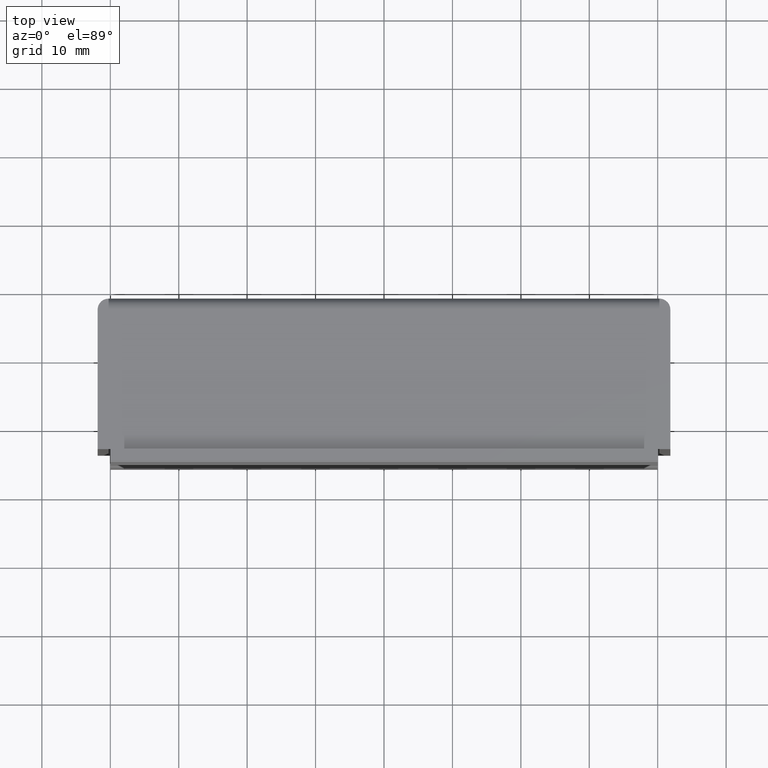
[diagram: clean part render]
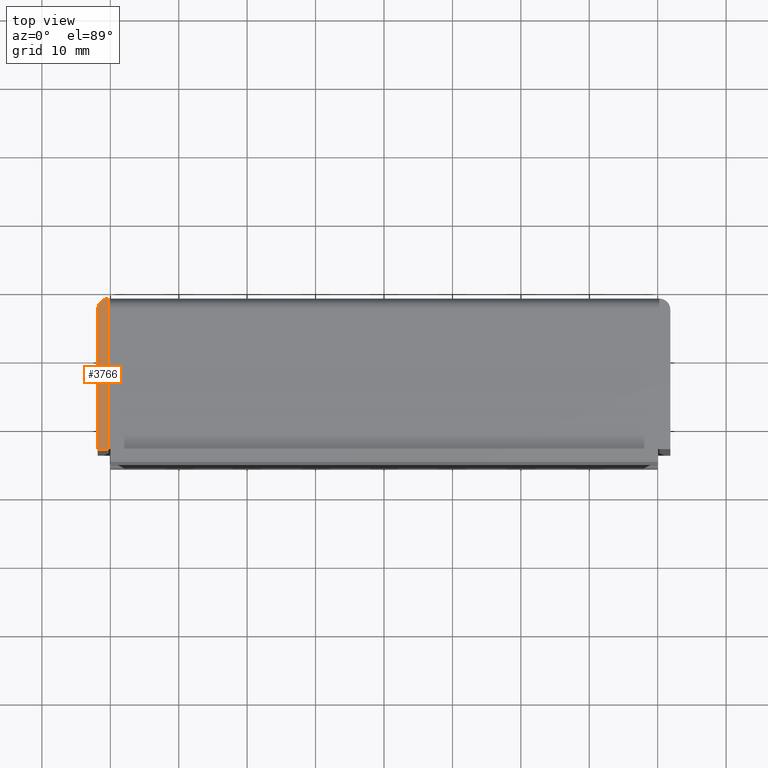
[diagram: same view with one face highlighted and labeled with its STEP entity id]
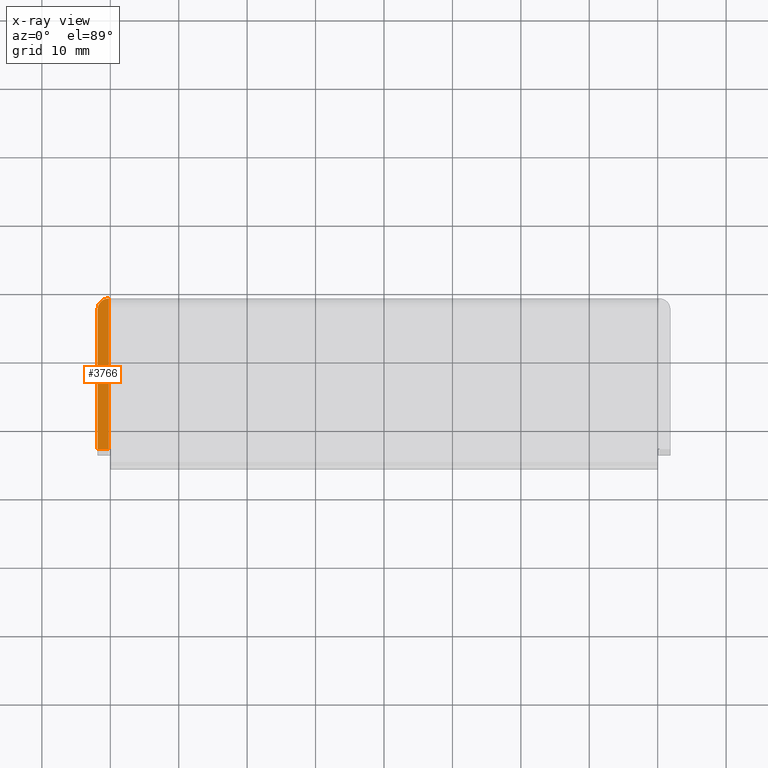
[diagram: x-ray of the same camera — body ghosted, the highlighted face saturated]
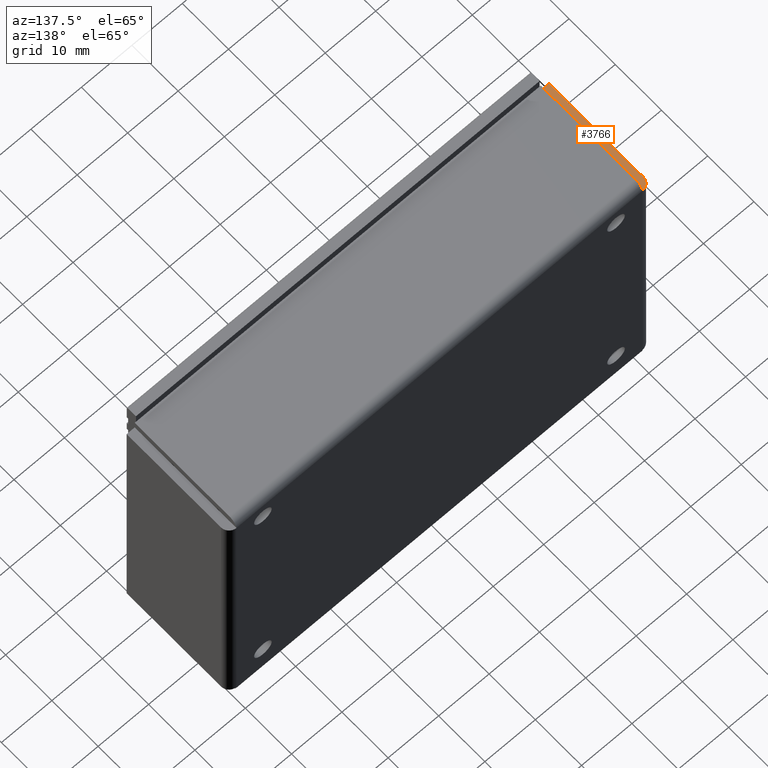
[diagram: same view with one face highlighted and labeled with its STEP entity id]
A machine part, top view. The second image highlights one B-rep face of the part: STEP entity #3766.
The next image is the same camera in x-ray: the body ghosted, the highlighted face saturated — about 0% of this face is hidden behind the body in this view.
A second angle (auxiliary view) of the same face is appended — the face is thin or edge-on in the first view.
In plain terms, the highlighted face is a freeform B-spline surface patch.
Its self-contained STEP definition (entity closure, byte-faithful):
#3618=CARTESIAN_POINT('',(-40.250000000000000,58.368048000000002,58.500000000000000));
#3619=VERTEX_POINT('',#3618);
#3620=CARTESIAN_POINT('',(-41.850000000000001,56.768048000000000,58.500000000000000));
#3621=VERTEX_POINT('',#3620);
#3622=CARTESIAN_POINT('',(-40.250000000000000,58.368048000000002,58.500000000000000));
#3623=CARTESIAN_POINT('',(-41.850000000000009,58.368047999999995,58.499999999999993));
#3624=CARTESIAN_POINT('',(-41.850000000000001,56.768048000000000,58.500000000000000));
#3632=(BOUNDED_CURVE()B_SPLINE_CURVE(2,(#3622,#3623,#3624),.UNSPECIFIED.,.F.,.U.)CURVE()GEOMETRIC_REPRESENTATION_ITEM()QUASI_UNIFORM_CURVE()RATIONAL_B_SPLINE_CURVE((1.0,0.707106781186548,1.0))REPRESENTATION_ITEM(''));
#3633=EDGE_CURVE('',#3619,#3621,#3632,.T.);
#3670=CARTESIAN_POINT('',(-40.250000000000000,36.368047999999952,58.500000000000000));
#3671=VERTEX_POINT('',#3670);
#3672=CARTESIAN_POINT('',(-41.850000000000001,36.368047999999952,58.500000000000000));
#3673=VERTEX_POINT('',#3672);
#3674=CARTESIAN_POINT('',(-40.250000000000000,36.368047999999952,58.500000000000000));
#3675=CARTESIAN_POINT('',(-41.850000000000001,36.368047999999952,58.500000000000000));
#3676=QUASI_UNIFORM_CURVE('',1,(#3674,#3675),.UNSPECIFIED.,.F.,.U.);
#3677=EDGE_CURVE('',#3671,#3673,#3676,.T.);
#3733=CARTESIAN_POINT('',(-41.850000000000001,36.368047999999952,58.500000000000000));
#3734=CARTESIAN_POINT('',(-41.850000000000001,56.768048000000000,58.500000000000000));
#3735=QUASI_UNIFORM_CURVE('',1,(#3733,#3734),.UNSPECIFIED.,.F.,.U.);
#3736=EDGE_CURVE('',#3673,#3621,#3735,.T.);
#3744=CARTESIAN_POINT('',(-40.170080083129648,35.269149616202853,58.500000000000000));
#3745=CARTESIAN_POINT('',(-41.929918357612863,35.269149616202853,58.500000000000000));
#3746=CARTESIAN_POINT('',(-40.170080083129648,59.466950121008338,58.500000000000000));
#3747=CARTESIAN_POINT('',(-41.929918357612863,59.466950121008338,58.500000000000000));
#3748=B_SPLINE_SURFACE_WITH_KNOTS('',1,1,((#3744,#3746),(#3745,#3747)),.UNSPECIFIED.,.F.,.F.,.U.,(2,2),(2,2),(0.041708376630023,0.958290811256692),(0.0,24.197800504805489),.UNSPECIFIED.);
#3749=CARTESIAN_POINT('',(-40.250000000000000,56.768048000000000,58.500000000000000));
#3750=VERTEX_POINT('',#3749);
#3751=CARTESIAN_POINT('',(-40.250000000000000,56.768048000000000,58.500000000000000));
#3752=CARTESIAN_POINT('',(-40.250000000000000,58.368048000000002,58.500000000000000));
#3753=QUASI_UNIFORM_CURVE('',1,(#3751,#3752),.UNSPECIFIED.,.F.,.U.);
#3754=EDGE_CURVE('',#3750,#3619,#3753,.T.);
#3755=ORIENTED_EDGE('',*,*,#3754,.T.);
#3756=ORIENTED_EDGE('',*,*,#3633,.T.);
#3757=ORIENTED_EDGE('',*,*,#3736,.F.);
#3758=ORIENTED_EDGE('',*,*,#3677,.F.);
#3759=CARTESIAN_POINT('',(-40.250000000000000,36.368047999999952,58.500000000000000));
#3760=CARTESIAN_POINT('',(-40.250000000000000,56.768048000000000,58.500000000000000));
#3761=QUASI_UNIFORM_CURVE('',1,(#3759,#3760),.UNSPECIFIED.,.F.,.U.);
#3762=EDGE_CURVE('',#3671,#3750,#3761,.T.);
#3763=ORIENTED_EDGE('',*,*,#3762,.T.);
#3764=EDGE_LOOP('',(#3755,#3756,#3757,#3758,#3763));
#3765=FACE_OUTER_BOUND('',#3764,.T.);
#3766=ADVANCED_FACE('',(#3765),#3748,.F.);